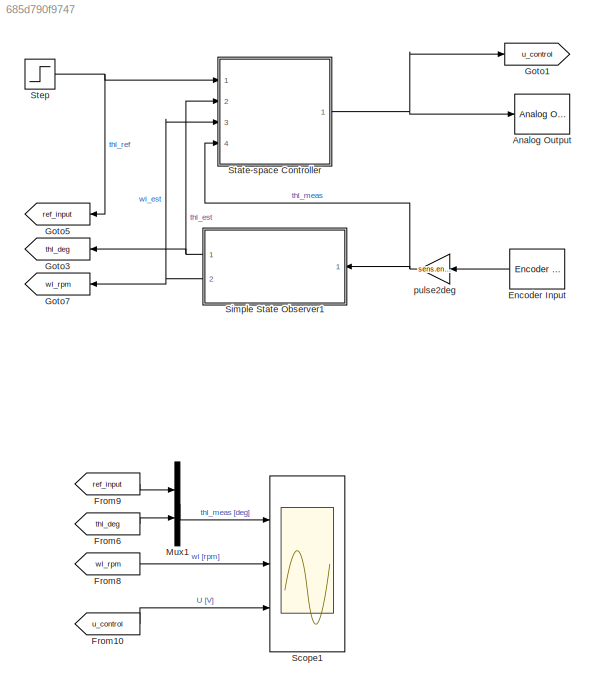
MODEL slx_685d790f9747
KIND model
CONFIG AbsTol = auto
CONFIG EnableMultiTasking = off
CONFIG FixedStep = auto
CONFIG MaxStep = auto
CONFIG MinStep = auto
CONFIG RelTol = 1e-3
CONFIG SampleTimeConstraint = Unconstrained
CONFIG SolverName = ode45
CONFIG StartTime = 0.0
CONFIG StopTime = 5
BLOCK [Reference] Analog Output  REF=sldrtlib/Analog Output
  AttributesFormatString = National Instruments\nPCI-6221 [auto]
  Ports = [1]
  SourceBlock = sldrtlib/Analog Output
  SourceProductBaseCode = WT
  SourceType = Simulink Desktop Real-Time Analog Output
BLOCK [Reference] Encoder Input  REF=sldrtlib/Encoder Input
  AttributesFormatString = National Instruments\nPCI-6221 [auto]
  Ports = [0, 1]
  SourceBlock = sldrtlib/Encoder Input
  SourceProductBaseCode = WT
  SourceType = Simulink Desktop Real-Time Encoder Input
BLOCK [From] From10
  GotoTag = u_control
BLOCK [From] From6
  GotoTag = thl_deg
BLOCK [From] From8
  GotoTag = wl_rpm
BLOCK [From] From9
  GotoTag = ref_input
BLOCK [Goto] Goto1
  GotoTag = u_control
BLOCK [Goto] Goto3
  GotoTag = thl_deg
BLOCK [Goto] Goto5
  GotoTag = ref_input
BLOCK [Goto] Goto7
  GotoTag = wl_rpm
BLOCK [Mux] Mux1
  DisplayOption = bar
  Inputs = 2
  Ports = [2, 1]
BLOCK [Scope] Scope1
  Floating = off
  NumInputPorts = 3
  Ports = [3]
  ScopeSpecificationString = Simulink.scopes.TimeScopeBlockCfg('CurrentConfiguration', extmgr.ConfigurationSet(extmgr.Configuration('Core','General UI',true),extmgr.Configuration('Core','Source UI',true),extmgr.Configuration('Sources','WiredSimulink',true,'DataLogging',true,'DataLoggingSaveFormat','StructureWithTime','DataLoggingVariableName','MotorData'),extmgr.Configuration('Visuals','Time Domain',true,'SerializedDisplays',...<+2806ch>
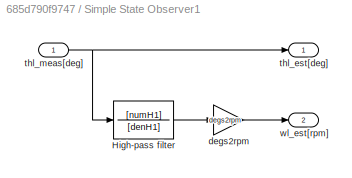
BLOCK [SubSystem] Simple State Observer1
  Ports = [1, 2]
  RequestExecContextInheritance = off
BLOCK [TransferFcn] Simple State Observer1/High-pass filter
  Denominator = [denH1]
  Numerator = [numH1]
BLOCK [Gain] Simple State Observer1/degs2rpm
  Gain = degs2rpm
BLOCK [Outport] Simple State Observer1/thl_est[deg]
BLOCK [Inport] Simple State Observer1/thl_meas[deg]
BLOCK [Outport] Simple State Observer1/wl_est[rpm]
  Port = 2
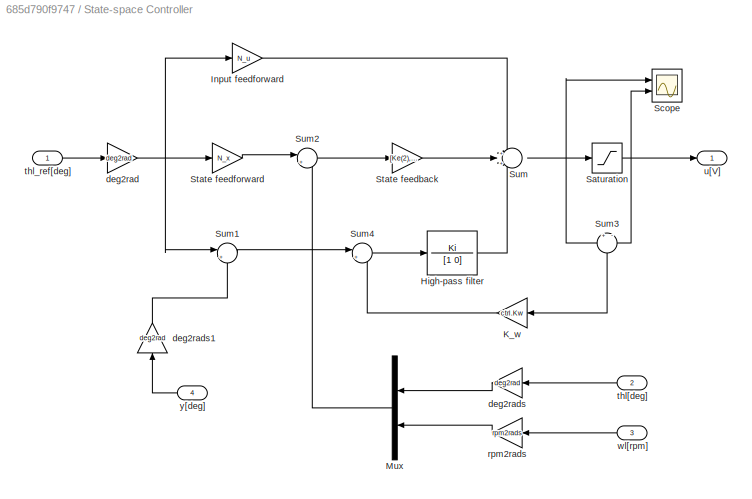
BLOCK [SubSystem] State-space Controller
  Ports = [4, 1]
  RequestExecContextInheritance = off
BLOCK [TransferFcn] State-space Controller/High-pass filter
  Denominator = [1 0]
  Numerator = Ki
BLOCK [Gain] State-space Controller/Input feedforward
  Gain = N_u
BLOCK [Gain] State-space Controller/K_w
  Gain = ctrl.Kw
BLOCK [Mux] State-space Controller/Mux
  DisplayOption = bar
  Inputs = 2
  Ports = [2, 1]
BLOCK [Saturate] State-space Controller/Saturation
  LowerLimit = -10
  UpperLimit = 10
BLOCK [Scope] State-space Controller/Scope
  Floating = off
  NumInputPorts = 2
  Ports = [2]
  ScopeSpecificationString = Simulink.scopes.TimeScopeBlockCfg('CurrentConfiguration', extmgr.ConfigurationSet(extmgr.Configuration('Core','General UI',true),extmgr.Configuration('Core','Source UI',true),extmgr.Configuration('Sources','WiredSimulink',true,'DataLoggingVariableName','ControllerData','DataLogging',true,'DataLoggingSaveFormat','StructureWithTime'),extmgr.Configuration('Visuals','Time Domain',true,'SerializedDispl...<+2066ch>
BLOCK [Gain] State-space Controller/State feedback
  Gain = [Ke(2),Ke(3)].'
  Multiplication = Matrix(u*K)
BLOCK [Gain] State-space Controller/State feedforward	
  Gain = N_x
  Multiplication = Matrix(u*K)
BLOCK [Sum] State-space Controller/Sum
  Inputs = +|+|+
  Ports = [3, 1]
BLOCK [Sum] State-space Controller/Sum1
  Inputs = |+-
  Ports = [2, 1]
BLOCK [Sum] State-space Controller/Sum2
  Inputs = |+-
  Ports = [2, 1]
BLOCK [Sum] State-space Controller/Sum3
  Inputs = +|-
  NameLocation = left
  Ports = [2, 1]
BLOCK [Sum] State-space Controller/Sum4
  Inputs = |+-
  Ports = [2, 1]
BLOCK [Gain] State-space Controller/deg2rad
  Gain = deg2rad
BLOCK [Gain] State-space Controller/deg2rads
  Gain = deg2rad
  NameLocation = top
BLOCK [Gain] State-space Controller/deg2rads1
  Gain = deg2rad
  NameLocation = right
BLOCK [Gain] State-space Controller/rpm2rads
  Gain = rpm2rads
BLOCK [Inport] State-space Controller/thl[deg]
  Port = 2
BLOCK [Inport] State-space Controller/thl_ref[deg]
BLOCK [Outport] State-space Controller/u[V]
BLOCK [Inport] State-space Controller/wl[rpm]
  Port = 3
BLOCK [Inport] State-space Controller/y[deg]
  Port = 4
BLOCK [Step] Step
  After = step_size
  SampleTime = 0
BLOCK [Gain] pulse2deg
  Gain = sens.enc.pulse2deg
LINE Encoder Input:1 -> pulse2deg:1
LINE From10:1 -> Scope1:3
LINE From6:1 -> Mux1:2
LINE From8:1 -> Scope1:2
LINE From9:1 -> Mux1:1
LINE Mux1:1 -> Scope1:1
LINE Simple State Observer1/High-pass filter:1 -> Simple State Observer1/degs2rpm:1
LINE Simple State Observer1/degs2rpm:1 -> Simple State Observer1/wl_est[rpm]:1
NET Simple State Observer1/thl_meas[deg]:1 -> Simple State Observer1/High-pass filter:1, Simple State Observer1/thl_est[deg]:1
NET Simple State Observer1:1 -> Goto3:1, State-space Controller:2
NET Simple State Observer1:2 -> Goto7:1, State-space Controller:3
LINE State-space Controller/High-pass filter:1 -> State-space Controller/Sum:3
LINE State-space Controller/Input feedforward:1 -> State-space Controller/Sum:1
LINE State-space Controller/K_w:1 -> State-space Controller/Sum4:2
LINE State-space Controller/Mux:1 -> State-space Controller/Sum2:2
NET State-space Controller/Saturation:1 -> State-space Controller/Scope:2, State-space Controller/Sum3:2, State-space Controller/u[V]:1
LINE State-space Controller/State feedback:1 -> State-space Controller/Sum:2
LINE State-space Controller/State feedforward	:1 -> State-space Controller/Sum2:1
LINE State-space Controller/Sum1:1 -> State-space Controller/Sum4:1
LINE State-space Controller/Sum2:1 -> State-space Controller/State feedback:1
LINE State-space Controller/Sum3:1 -> State-space Controller/K_w:1
LINE State-space Controller/Sum4:1 -> State-space Controller/High-pass filter:1
NET State-space Controller/Sum:1 -> State-space Controller/Saturation:1, State-space Controller/Scope:1, State-space Controller/Sum3:1
NET State-space Controller/deg2rad:1 -> State-space Controller/Input feedforward:1, State-space Controller/State feedforward	:1, State-space Controller/Sum1:1
LINE State-space Controller/deg2rads1:1 -> State-space Controller/Sum1:2
LINE State-space Controller/deg2rads:1 -> State-space Controller/Mux:1
LINE State-space Controller/rpm2rads:1 -> State-space Controller/Mux:2
LINE State-space Controller/thl[deg]:1 -> State-space Controller/deg2rads:1
LINE State-space Controller/thl_ref[deg]:1 -> State-space Controller/deg2rad:1
LINE State-space Controller/wl[rpm]:1 -> State-space Controller/rpm2rads:1
LINE State-space Controller/y[deg]:1 -> State-space Controller/deg2rads1:1
NET State-space Controller:1 -> Analog Output:1, Goto1:1
NET Step:1 -> Goto5:1, State-space Controller:1
NET pulse2deg:1 -> Simple State Observer1:1, State-space Controller:4
note: NET lines group one-source signal fan-out (src -> all destinations, sorted); 1:1 wires keep LINE
